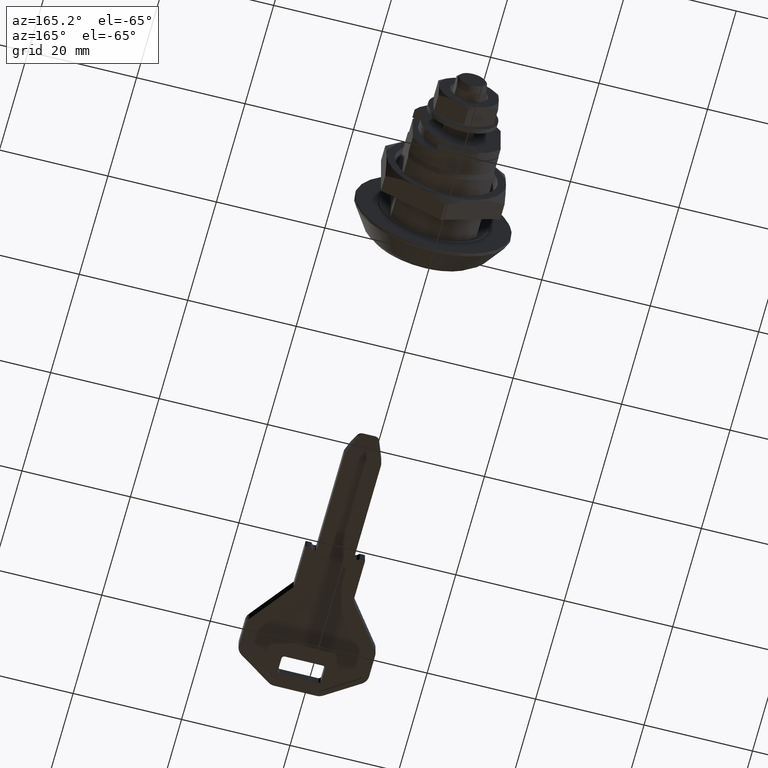
[diagram: clean part render]
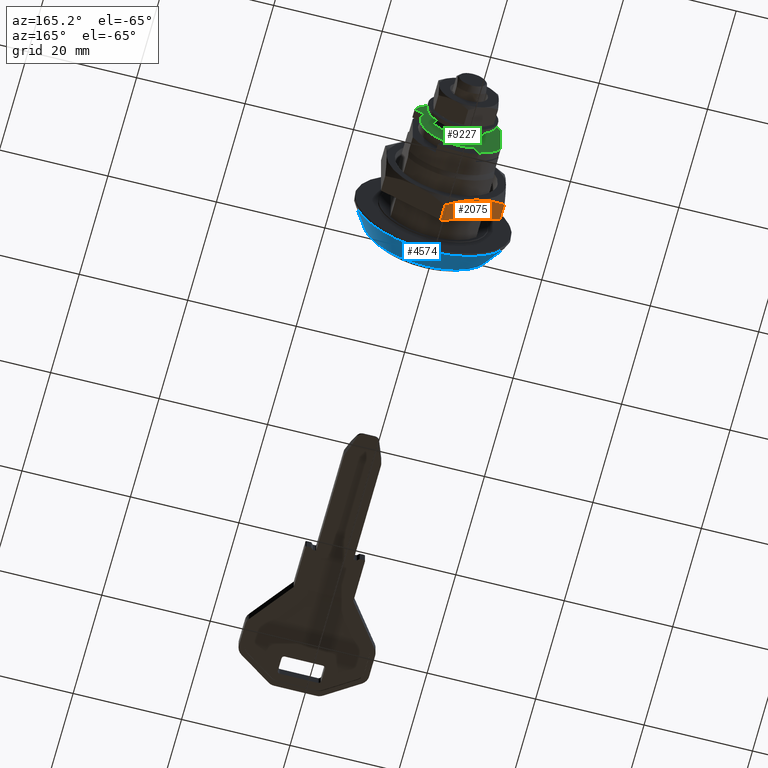
[diagram: same view with three faces highlighted in distinct colors, each labeled with its STEP entity id]
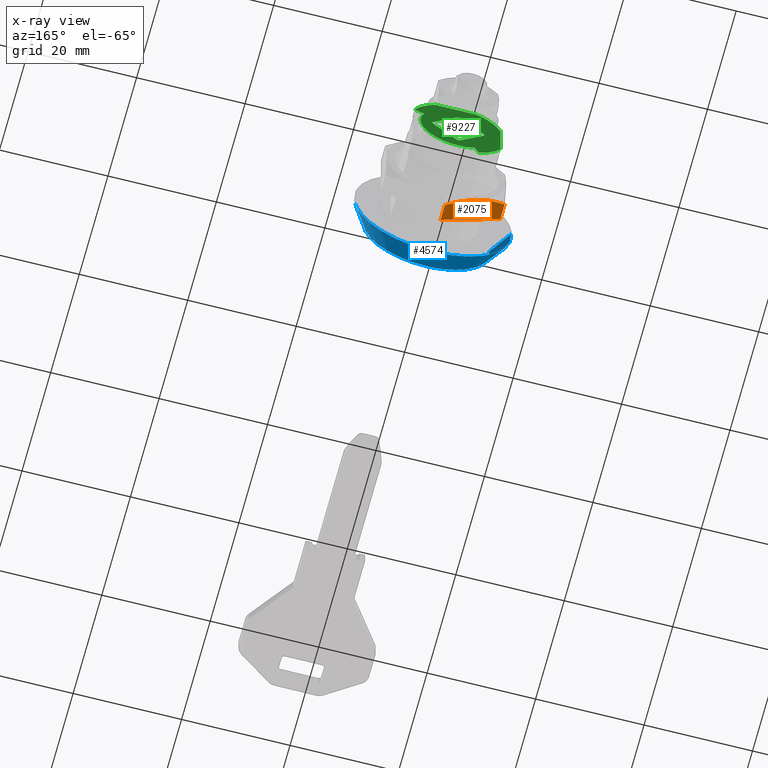
[diagram: x-ray of the same camera — body ghosted, the three highlighted faces saturated]
A machine part, auxiliary view with three faces highlighted in distinct colors.
The next image is the same camera in x-ray (body ghosted, the three faces saturated) — at least one of them is partly hidden behind the body in this view.
Their STEP definitions:

[orange] entity #2075 — the highlighted face is a freeform B-spline surface patch.
#1701=CARTESIAN_POINT('',(-5.500000000023109,9.100000000000001,-9.526279441614451));
#1702=VERTEX_POINT('',#1701);
#1866=CARTESIAN_POINT('',(-3.092218E-010,8.100000000000001,-12.701705921991501));
#1867=VERTEX_POINT('',#1866);
#1883=CARTESIAN_POINT('',(-3.092218E-010,8.100000000000001,-12.701705921991501));
#1884=CARTESIAN_POINT('',(-0.897390671168601,8.404464325251702,-12.183597176602710));
#1885=CARTESIAN_POINT('',(-1.801527311639420,8.655519008509408,-11.661593643842791));
#1886=CARTESIAN_POINT('',(-3.172334283412471,8.916493014328005,-10.870157869682769));
#1887=CARTESIAN_POINT('',(-3.631709724190716,8.984167932261109,-10.604937335290410));
#1888=CARTESIAN_POINT('',(-4.555988596678225,9.075751188439313,-10.071304679453570));
#1889=CARTESIAN_POINT('',(-5.020896850939170,9.099621345255606,-9.802889773707600));
#1890=CARTESIAN_POINT('',(-5.492515007584484,9.099998503333353,-9.530600904013776));
#1891=CARTESIAN_POINT('',(-5.496257409305401,9.099999999408880,-9.528440227372791));
#1892=CARTESIAN_POINT('',(-5.500000000103746,9.099999998507940,-9.526279441567901));
#1893=B_SPLINE_CURVE_WITH_KNOTS('',3,(#1883,#1884,#1885,#1886,#1887,#1888,#1889,#1890,#1891,#1892),.UNSPECIFIED.,.F.,.U.,(4,2,2,2,4),(0.0,0.250000000000000,0.375000000000000,0.500000000000000,0.500999787640793),.UNSPECIFIED.);
#1894=EDGE_CURVE('',#1867,#1702,#1893,.T.);
#1914=CARTESIAN_POINT('',(-10.999999999737000,8.100000000000001,-6.350852961237401));
#1915=VERTEX_POINT('',#1914);
#1932=CARTESIAN_POINT('',(-5.500000000023109,9.100000000000001,-9.526279441614451));
#1933=CARTESIAN_POINT('',(-5.613238213916751,9.099999971245993,-9.460901328340423));
#1934=CARTESIAN_POINT('',(-5.726649521012775,9.098629515745216,-9.395423279659402));
#1935=CARTESIAN_POINT('',(-5.957574947754808,9.093036632926328,-9.262098422367185));
#1936=CARTESIAN_POINT('',(-6.074949705678828,9.088722183420927,-9.194332074283702));
#1937=CARTESIAN_POINT('',(-6.426124768589829,9.071457702720835,-8.991581057179397));
#1938=CARTESIAN_POINT('',(-6.659396536653518,9.054173287237553,-8.856901539093515));
#1939=CARTESIAN_POINT('',(-7.356788676236405,8.985758877713401,-8.454261999574698));
#1940=CARTESIAN_POINT('',(-7.818480344938637,8.918029869608390,-8.187704190366913));
#1941=CARTESIAN_POINT('',(-9.195032414789202,8.656592680722049,-7.392951482285330));
#1942=CARTESIAN_POINT('',(-10.101404799398299,8.404872994816586,-6.869657142045340));
#1943=CARTESIAN_POINT('',(-10.999999999737019,8.100000000000165,-6.350852961237386));
#1944=B_SPLINE_CURVE_WITH_KNOTS('',3,(#1932,#1933,#1934,#1935,#1936,#1937,#1938,#1939,#1940,#1941,#1942,#1943),.UNSPECIFIED.,.F.,.U.,(4,2,2,2,2,4),(0.500999787669096,0.531250000000000,0.562500000000000,0.625000000000000,0.750000000000000,1.0),.UNSPECIFIED.);
#1945=EDGE_CURVE('',#1702,#1915,#1944,.T.);
#2047=CARTESIAN_POINT('',(-11.549449978669591,4.900200007752773,-6.033627867994502));
#2048=CARTESIAN_POINT('',(0.549450273728325,4.900200007752773,-13.018931185613329));
#2049=CARTESIAN_POINT('',(-11.549449978669591,9.299800099535581,-6.033627867994502));
#2050=CARTESIAN_POINT('',(0.549450273728326,9.299800099535581,-13.018931185613329));
#2051=B_SPLINE_SURFACE_WITH_KNOTS('',1,1,((#2047,#2049),(#2048,#2050)),.UNSPECIFIED.,.F.,.F.,.U.,(2,2),(2,2),(0.0,13.970606635239960),(0.0,4.399600091782808),.UNSPECIFIED.);
#2052=ORIENTED_EDGE('',*,*,#1894,.F.);
#2053=CARTESIAN_POINT('',(1.000475E-011,5.099999999999994,-12.701705922165839));
#2054=VERTEX_POINT('',#2053);
#2055=CARTESIAN_POINT('',(-3.092218E-010,8.100000000000001,-12.701705921991501));
#2056=CARTESIAN_POINT('',(1.000475E-011,5.099999999999994,-12.701705922165839));
#2057=QUASI_UNIFORM_CURVE('',1,(#2055,#2056),.UNSPECIFIED.,.F.,.U.);
#2058=EDGE_CURVE('',#1867,#2054,#2057,.T.);
#2059=ORIENTED_EDGE('',*,*,#2058,.T.);
#2060=CARTESIAN_POINT('',(-10.999999999989940,5.099999999999994,-6.350852961091360));
#2061=VERTEX_POINT('',#2060);
#2062=CARTESIAN_POINT('',(1.000475E-011,5.099999999999994,-12.701705922165839));
#2063=CARTESIAN_POINT('',(-10.999999999989940,5.099999999999994,-6.350852961091360));
#2064=QUASI_UNIFORM_CURVE('',1,(#2062,#2063),.UNSPECIFIED.,.F.,.U.);
#2065=EDGE_CURVE('',#2054,#2061,#2064,.T.);
#2066=ORIENTED_EDGE('',*,*,#2065,.T.);
#2067=CARTESIAN_POINT('',(-10.999999999737000,8.100000000000001,-6.350852961237401));
#2068=CARTESIAN_POINT('',(-10.999999999989940,5.099999999999994,-6.350852961091360));
#2069=QUASI_UNIFORM_CURVE('',1,(#2067,#2068),.UNSPECIFIED.,.F.,.U.);
#2070=EDGE_CURVE('',#1915,#2061,#2069,.T.);
#2071=ORIENTED_EDGE('',*,*,#2070,.F.);
#2072=ORIENTED_EDGE('',*,*,#1945,.F.);
#2073=EDGE_LOOP('',(#2052,#2059,#2066,#2071,#2072));
#2074=FACE_OUTER_BOUND('',#2073,.T.);
#2075=ADVANCED_FACE('',(#2074),#2051,.F.);

[blue] entity #4574 — the highlighted face is a freeform B-spline surface patch.
#4343=CARTESIAN_POINT('',(14.472954574721900,-0.499999999865429,-0.885203863069927));
#4344=VERTEX_POINT('',#4343);
#4350=CARTESIAN_POINT('',(-3.061516E-017,-0.499999999984780,-14.500000000000140));
#4351=VERTEX_POINT('',#4350);
#4352=CARTESIAN_POINT('',(-3.061516E-017,-0.499999999984780,-14.500000000000140));
#4353=CARTESIAN_POINT('',(13.412488746198358,-0.499999999925105,-14.373773487147799));
#4354=CARTESIAN_POINT('',(14.472954574721902,-0.499999999865429,-0.885203863069927));
#4362=(BOUNDED_CURVE()B_SPLINE_CURVE(2,(#4352,#4353,#4354),.UNSPECIFIED.,.F.,.U.)B_SPLINE_CURVE_WITH_KNOTS((3,3),(0.500000000000000,0.736331300624226),.UNSPECIFIED.)CURVE()GEOMETRIC_REPRESENTATION_ITEM()RATIONAL_B_SPLINE_CURVE((1.0,0.723120658615202,0.969723356153992))REPRESENTATION_ITEM(''));
#4363=EDGE_CURVE('',#4351,#4344,#4362,.T.);
#4365=CARTESIAN_POINT('',(-14.472954574721900,-0.499999999865427,0.885203863069926));
#4366=VERTEX_POINT('',#4365);
#4367=CARTESIAN_POINT('',(-14.472954574721902,-0.499999999865427,0.885203863069926));
#4368=CARTESIAN_POINT('',(-14.500000000039186,-0.499999999867158,0.443015087794452));
#4369=CARTESIAN_POINT('',(-14.500000000038570,-0.499999999868997,3.697375E-012));
#4370=CARTESIAN_POINT('',(-14.500000000018430,-0.499999999929162,-14.499999999998375));
#4371=CARTESIAN_POINT('',(-3.061516E-017,-0.499999999984780,-14.500000000000140));
#4379=(BOUNDED_CURVE()B_SPLINE_CURVE(2,(#4367,#4368,#4369,#4370,#4371),.UNSPECIFIED.,.F.,.U.)B_SPLINE_CURVE_WITH_KNOTS((3,2,3),(0.239332961767345,0.250000000000000,0.500000000000000),.UNSPECIFIED.)CURVE()GEOMETRIC_REPRESENTATION_ITEM()RATIONAL_B_SPLINE_CURVE((0.976072040655993,0.987502787347326,1.0,0.707106781186547,1.0))REPRESENTATION_ITEM(''));
#4380=EDGE_CURVE('',#4366,#4351,#4379,.T.);
#4467=CARTESIAN_POINT('',(-11.575147386054629,-4.833589941129781,0.910983856030640));
#4468=VERTEX_POINT('',#4467);
#4469=CARTESIAN_POINT('',(-11.575147386054629,-4.833589941129781,0.910983856030640));
#4470=CARTESIAN_POINT('',(-14.472954574721900,-0.499999999865427,0.885203863069926));
#4471=QUASI_UNIFORM_CURVE('',1,(#4469,#4470),.UNSPECIFIED.,.F.,.U.);
#4472=EDGE_CURVE('',#4468,#4366,#4471,.T.);
#4489=CARTESIAN_POINT('',(11.575147386054629,-4.833589941129783,-0.910983856030640));
#4490=VERTEX_POINT('',#4489);
#4506=CARTESIAN_POINT('',(11.575147386054629,-4.833589941129783,-0.910983856030640));
#4507=CARTESIAN_POINT('',(14.472954574721900,-0.499999999865429,-0.885203863069927));
#4508=QUASI_UNIFORM_CURVE('',1,(#4506,#4507),.UNSPECIFIED.,.F.,.U.);
#4509=EDGE_CURVE('',#4490,#4344,#4508,.T.);
#4516=CARTESIAN_POINT('',(11.531454816235735,-4.941929689658704,-0.545588122807060));
#4517=CARTESIAN_POINT('',(11.517391456086944,-4.941929689658702,-0.724280056135963));
#4518=CARTESIAN_POINT('',(10.597826506999123,-4.941929689658704,-12.408460567455906));
#4519=CARTESIAN_POINT('',(-0.905317030228392,-4.941929689658703,-11.503143537227510));
#4520=CARTESIAN_POINT('',(-12.408460567455906,-4.941929689658703,-10.597826506999123));
#4521=CARTESIAN_POINT('',(-11.496721403432813,-4.941929689658704,0.986917977067050));
#4522=CARTESIAN_POINT('',(-11.490336899972885,-4.941929689658704,1.068040785167665));
#4523=CARTESIAN_POINT('',(14.564863992404982,-0.388951757742933,-0.689107916667046));
#4524=CARTESIAN_POINT('',(14.547101192211306,-0.388951757742933,-0.914805692615576));
#4525=CARTESIAN_POINT('',(13.385639899678662,-0.388951757742933,-15.672570668677480));
#4526=CARTESIAN_POINT('',(-1.143465384499406,-0.388951757742932,-14.529105284178071));
#4527=CARTESIAN_POINT('',(-15.672570668677480,-0.388951757742931,-13.385639899678662));
#4528=CARTESIAN_POINT('',(-14.520993774680656,-0.388951757742931,1.246531884893023));
#4529=CARTESIAN_POINT('',(-14.512929794373340,-0.388951757742931,1.348994469666270));
#4537=(BOUNDED_SURFACE()B_SPLINE_SURFACE(2,1,((#4516,#4523),(#4517,#4524),(#4518,#4525),(#4519,#4526),(#4520,#4527),(#4521,#4528),(#4522,#4529)),.UNSPECIFIED.,.F.,.F.,.U.)B_SPLINE_SURFACE_WITH_KNOTS((3,1,2,1,3),(2,2),(0.0,0.540966243527962,24.688013362538939,48.835060481549910,49.078020981460490),(0.0,5.472821686279342),.UNSPECIFIED.)GEOMETRIC_REPRESENTATION_ITEM()RATIONAL_B_SPLINE_SURFACE(((1.013123372274499,1.013123372274499),(1.006561686137250,1.006561686137250),(0.707106781186548,0.707106781186548),(1.0,1.0),(0.707106781186548,0.707106781186548),(1.002947005590895,1.002947005590895),(1.005894011181790,1.005894011181790)))REPRESENTATION_ITEM('')SURFACE());
#4538=ORIENTED_EDGE('',*,*,#4472,.T.);
#4539=ORIENTED_EDGE('',*,*,#4380,.T.);
#4540=ORIENTED_EDGE('',*,*,#4363,.T.);
#4541=ORIENTED_EDGE('',*,*,#4509,.F.);
#4542=CARTESIAN_POINT('',(-2.959622E-016,-4.833589941130070,-11.610940039240059));
#4543=VERTEX_POINT('',#4542);
#4544=CARTESIAN_POINT('',(-2.959622E-016,-4.833589941130070,-11.610940039240059));
#4545=CARTESIAN_POINT('',(10.733042571484326,-4.833589941129928,-11.610940039239273));
#4546=CARTESIAN_POINT('',(11.575147386054637,-4.833589941129783,-0.910983856030640));
#4554=(BOUNDED_CURVE()B_SPLINE_CURVE(2,(#4544,#4545,#4546),.UNSPECIFIED.,.F.,.U.)B_SPLINE_CURVE_WITH_KNOTS((3,3),(0.500000000000000,0.736331300632719),.UNSPECIFIED.)CURVE()GEOMETRIC_REPRESENTATION_ITEM()RATIONAL_B_SPLINE_CURVE((1.0,0.723120658605253,0.969723356171716))REPRESENTATION_ITEM(''));
#4555=EDGE_CURVE('',#4543,#4490,#4554,.T.);
#4556=ORIENTED_EDGE('',*,*,#4555,.F.);
#4557=CARTESIAN_POINT('',(-11.575147386054637,-4.833589941129781,0.910983856030640));
#4558=CARTESIAN_POINT('',(-11.610940039240063,-4.833589941130027,0.456195076601409));
#4559=CARTESIAN_POINT('',(-11.610940039240059,-4.833589941130028,-1.551421E-012));
#4560=CARTESIAN_POINT('',(-11.610940039240063,-4.833589941130049,-11.610940039240806));
#4561=CARTESIAN_POINT('',(-2.959622E-016,-4.833589941130070,-11.610940039240059));
#4569=(BOUNDED_CURVE()B_SPLINE_CURVE(2,(#4557,#4558,#4559,#4560,#4561),.UNSPECIFIED.,.F.,.U.)B_SPLINE_CURVE_WITH_KNOTS((3,2,3),(0.236331300632719,0.250000000000000,0.500000000000000),.UNSPECIFIED.)CURVE()GEOMETRIC_REPRESENTATION_ITEM()RATIONAL_B_SPLINE_CURVE((0.969723356171716,0.983986122581295,1.0,0.707106781186548,1.0))REPRESENTATION_ITEM(''));
#4570=EDGE_CURVE('',#4468,#4543,#4569,.T.);
#4571=ORIENTED_EDGE('',*,*,#4570,.F.);
#4572=EDGE_LOOP('',(#4538,#4539,#4540,#4541,#4556,#4571));
#4573=FACE_OUTER_BOUND('',#4572,.T.);
#4574=ADVANCED_FACE('',(#4573),#4537,.T.);

[green] entity #9227 — the highlighted face is a freeform B-spline surface patch.
#8727=CARTESIAN_POINT('',(8.066139304627553,17.500000000000000,3.761302529489555));
#8728=VERTEX_POINT('',#8727);
#8734=CARTESIAN_POINT('',(4.286023798300111,17.500000000000000,7.800000000000000));
#8735=VERTEX_POINT('',#8734);
#8736=CARTESIAN_POINT('',(4.286023798300111,17.500000000000000,7.800000000000000));
#8737=CARTESIAN_POINT('',(6.836333408676012,17.499999999999996,6.398629784243493));
#8738=CARTESIAN_POINT('',(8.066139304627555,17.500000000000000,3.761302529489556));
#8746=(BOUNDED_CURVE()B_SPLINE_CURVE(2,(#8736,#8737,#8738),.UNSPECIFIED.,.F.,.U.)CURVE()GEOMETRIC_REPRESENTATION_ITEM()QUASI_UNIFORM_CURVE()RATIONAL_B_SPLINE_CURVE((1.0,0.950484181328682,1.0))REPRESENTATION_ITEM(''));
#8747=EDGE_CURVE('',#8735,#8728,#8746,.T.);
#8770=CARTESIAN_POINT('',(-3.377869150819929,17.500000000000000,7.799999999996209));
#8771=VERTEX_POINT('',#8770);
#8772=CARTESIAN_POINT('',(-3.377869150819929,17.500000000000000,7.799999999996209));
#8773=CARTESIAN_POINT('',(4.286023798300111,17.500000000000000,7.800000000000000));
#8774=QUASI_UNIFORM_CURVE('',1,(#8772,#8773),.UNSPECIFIED.,.F.,.U.);
#8775=EDGE_CURVE('',#8771,#8735,#8774,.T.);
#8815=CARTESIAN_POINT('',(-7.799999999999999,17.500000000000000,3.377869150810140));
#8816=VERTEX_POINT('',#8815);
#8817=CARTESIAN_POINT('',(-7.799999999999999,17.500000000000000,3.377869150810140));
#8818=CARTESIAN_POINT('',(-6.463664856444348,17.500000000000004,6.463664856436366));
#8819=CARTESIAN_POINT('',(-3.377869150819934,17.500000000000000,7.799999999996209));
#8827=(BOUNDED_CURVE()B_SPLINE_CURVE(2,(#8817,#8818,#8819),.UNSPECIFIED.,.F.,.U.)CURVE()GEOMETRIC_REPRESENTATION_ITEM()QUASI_UNIFORM_CURVE()RATIONAL_B_SPLINE_CURVE((1.0,0.929876126559526,1.0))REPRESENTATION_ITEM(''));
#8828=EDGE_CURVE('',#8816,#8771,#8827,.T.);
#8851=CARTESIAN_POINT('',(-7.799999999999439,17.500000000000000,-4.286023798348255));
#8852=VERTEX_POINT('',#8851);
#8853=CARTESIAN_POINT('',(-7.799999999999439,17.500000000000000,-4.286023798348255));
#8854=CARTESIAN_POINT('',(-7.799999999999999,17.500000000000000,3.377869150810140));
#8855=QUASI_UNIFORM_CURVE('',1,(#8853,#8854),.UNSPECIFIED.,.F.,.U.);
#8856=EDGE_CURVE('',#8852,#8816,#8855,.T.);
#8896=CARTESIAN_POINT('',(-3.761302529499969,17.500000000000000,-8.066139304629731));
#8897=VERTEX_POINT('',#8896);
#8898=CARTESIAN_POINT('',(-3.761302529499969,17.500000000000000,-8.066139304629731));
#8899=CARTESIAN_POINT('',(-6.398629784224278,17.500000000000004,-6.836333408681617));
#8900=CARTESIAN_POINT('',(-7.799999999999434,17.500000000000000,-4.286023798348253));
#8908=(BOUNDED_CURVE()B_SPLINE_CURVE(2,(#8898,#8899,#8900),.UNSPECIFIED.,.F.,.U.)CURVE()GEOMETRIC_REPRESENTATION_ITEM()QUASI_UNIFORM_CURVE()RATIONAL_B_SPLINE_CURVE((1.0,0.950484181329575,1.0))REPRESENTATION_ITEM(''));
#8909=EDGE_CURVE('',#8897,#8852,#8908,.T.);
#8932=CARTESIAN_POINT('',(-2.958327832188149,17.500000000000000,-6.344154509254860));
#8933=VERTEX_POINT('',#8932);
#8934=CARTESIAN_POINT('',(-2.958327832188149,17.500000000000000,-6.344154509254860));
#8935=CARTESIAN_POINT('',(-3.761302529499969,17.500000000000000,-8.066139304629731));
#8936=QUASI_UNIFORM_CURVE('',1,(#8934,#8935),.UNSPECIFIED.,.F.,.U.);
#8937=EDGE_CURVE('',#8933,#8897,#8936,.T.);
#8985=CARTESIAN_POINT('',(6.344154509255561,17.500000000000000,2.958327832187285));
#8986=VERTEX_POINT('',#8985);
#8987=CARTESIAN_POINT('',(6.344154509255561,17.500000000000000,2.958327832187285));
#8988=CARTESIAN_POINT('',(6.589009069306495,17.499999999999989,2.433588931308323));
#8989=CARTESIAN_POINT('',(6.905882742427118,17.500000000000021,1.451075906461854));
#8990=CARTESIAN_POINT('',(7.063549101140965,17.499999999999989,-0.241991509177428));
#8991=CARTESIAN_POINT('',(6.821480348437667,17.500000000000011,-1.889291703654381));
#8992=CARTESIAN_POINT('',(6.152176463100130,17.499999999999989,-3.456176799989196));
#8993=CARTESIAN_POINT('',(5.341858441237930,17.500000000000011,-4.583557962989720));
#8994=CARTESIAN_POINT('',(4.440656223657611,17.499999999999929,-5.450905788930330));
#8995=CARTESIAN_POINT('',(3.263352726607400,17.500000000000060,-6.263739424742753));
#8996=CARTESIAN_POINT('',(1.797774132293181,17.499999999999989,-6.840528948819826));
#8997=CARTESIAN_POINT('',(0.198223581413840,17.500000000000000,-7.044277842365331));
#8998=CARTESIAN_POINT('',(-1.363628491750430,17.499999999999940,-6.929053769325312));
#8999=CARTESIAN_POINT('',(-2.393253526205955,17.500000000000171,-6.607884486907417));
#9000=CARTESIAN_POINT('',(-2.958327832188149,17.500000000000000,-6.344154509254860));
#9001=B_SPLINE_CURVE_WITH_KNOTS('',3,(#8987,#8988,#8989,#8990,#8991,#8992,#8993,#8994,#8995,#8996,#8997,#8998,#8999,#9000),.UNSPECIFIED.,.F.,.U.,(4,1,1,1,1,1,1,1,1,1,1,4),(0.000000311078601,1.737159822209234,3.073429747377331,5.077919781774943,6.681501885179900,8.151458155121956,9.220281856788301,10.423010998970620,12.427470264448839,13.897403088351290,15.233760385733779,17.104486341175878),.UNSPECIFIED.);
#9002=EDGE_CURVE('',#8986,#8933,#9001,.T.);
#9023=CARTESIAN_POINT('',(8.066139304627553,17.500000000000000,3.761302529489555));
#9024=CARTESIAN_POINT('',(6.344154509255561,17.500000000000000,2.958327832187285));
#9025=QUASI_UNIFORM_CURVE('',1,(#9023,#9024),.UNSPECIFIED.,.F.,.U.);
#9026=EDGE_CURVE('',#8728,#8986,#9025,.T.);
#9130=CARTESIAN_POINT('',(8.858652932142043,17.500000000000000,8.592513627514599));
#9131=CARTESIAN_POINT('',(-8.592514053077506,17.500000000000000,8.592513627514599));
#9132=CARTESIAN_POINT('',(8.858652932142043,17.500000000000000,-8.858653357707347));
#9133=CARTESIAN_POINT('',(-8.592514053077506,17.500000000000000,-8.858653357707347));
#9134=B_SPLINE_SURFACE_WITH_KNOTS('',1,1,((#9130,#9132),(#9131,#9133)),.UNSPECIFIED.,.F.,.F.,.U.,(2,2),(2,2),(0.0,17.451166985219551),(0.0,17.451166985221949),.UNSPECIFIED.);
#9135=ORIENTED_EDGE('',*,*,#9026,.T.);
#9136=ORIENTED_EDGE('',*,*,#9002,.T.);
#9137=ORIENTED_EDGE('',*,*,#8937,.T.);
#9138=ORIENTED_EDGE('',*,*,#8909,.T.);
#9139=ORIENTED_EDGE('',*,*,#8856,.T.);
#9140=ORIENTED_EDGE('',*,*,#8828,.T.);
#9141=ORIENTED_EDGE('',*,*,#8775,.T.);
#9142=ORIENTED_EDGE('',*,*,#8747,.T.);
#9143=EDGE_LOOP('',(#9135,#9136,#9137,#9138,#9139,#9140,#9141,#9142));
#9144=FACE_OUTER_BOUND('',#9143,.T.);
#9145=CARTESIAN_POINT('',(4.666904755831221,17.500000000000000,0.282842712474762));
#9146=VERTEX_POINT('',#9145);
#9147=CARTESIAN_POINT('',(4.666904755831221,17.500000000000000,-0.282842712474477));
#9148=VERTEX_POINT('',#9147);
#9149=CARTESIAN_POINT('',(4.666904755831219,17.500000000000000,0.282842712474759));
#9150=CARTESIAN_POINT('',(4.949747468305830,17.500000000000000,1.423900E-013));
#9151=CARTESIAN_POINT('',(4.666904755831218,17.500000000000000,-0.282842712474474));
#9159=(BOUNDED_CURVE()B_SPLINE_CURVE(2,(#9149,#9150,#9151),.UNSPECIFIED.,.F.,.U.)CURVE()GEOMETRIC_REPRESENTATION_ITEM()QUASI_UNIFORM_CURVE()RATIONAL_B_SPLINE_CURVE((1.0,0.707106781186554,1.0))REPRESENTATION_ITEM(''));
#9160=EDGE_CURVE('',#9146,#9148,#9159,.T.);
#9161=ORIENTED_EDGE('',*,*,#9160,.F.);
#9162=CARTESIAN_POINT('',(0.282842712474621,17.500000000000000,4.666904755831360));
#9163=VERTEX_POINT('',#9162);
#9164=CARTESIAN_POINT('',(4.666904755831221,17.500000000000000,0.282842712474762));
#9165=CARTESIAN_POINT('',(0.282842712474621,17.500000000000000,4.666904755831360));
#9166=QUASI_UNIFORM_CURVE('',1,(#9164,#9165),.UNSPECIFIED.,.F.,.U.);
#9167=EDGE_CURVE('',#9146,#9163,#9166,.T.);
#9168=ORIENTED_EDGE('',*,*,#9167,.T.);
#9169=CARTESIAN_POINT('',(-0.282842712474617,17.500000000000000,4.666904755831360));
#9170=VERTEX_POINT('',#9169);
#9171=CARTESIAN_POINT('',(-0.282842712474615,17.500000000000000,4.666904755831357));
#9172=CARTESIAN_POINT('',(1.568529E-015,17.500000000000004,4.949747468305968));
#9173=CARTESIAN_POINT('',(0.282842712474618,17.500000000000000,4.666904755831357));
#9181=(BOUNDED_CURVE()B_SPLINE_CURVE(2,(#9171,#9172,#9173),.UNSPECIFIED.,.F.,.U.)CURVE()GEOMETRIC_REPRESENTATION_ITEM()QUASI_UNIFORM_CURVE()RATIONAL_B_SPLINE_CURVE((1.0,0.707106781186555,1.0))REPRESENTATION_ITEM(''));
#9182=EDGE_CURVE('',#9170,#9163,#9181,.T.);
#9183=ORIENTED_EDGE('',*,*,#9182,.F.);
#9184=CARTESIAN_POINT('',(-4.666904755831209,17.500000000000000,0.282842712474763));
#9185=VERTEX_POINT('',#9184);
#9186=CARTESIAN_POINT('',(-0.282842712474617,17.500000000000000,4.666904755831360));
#9187=CARTESIAN_POINT('',(-4.666904755831209,17.500000000000000,0.282842712474763));
#9188=QUASI_UNIFORM_CURVE('',1,(#9186,#9187),.UNSPECIFIED.,.F.,.U.);
#9189=EDGE_CURVE('',#9170,#9185,#9188,.T.);
#9190=ORIENTED_EDGE('',*,*,#9189,.T.);
#9191=CARTESIAN_POINT('',(-4.666904755831209,17.500000000000000,-0.282842712474477));
#9192=VERTEX_POINT('',#9191);
#9193=CARTESIAN_POINT('',(-4.666904755831209,17.500000000000000,-0.282842712474477));
#9194=CARTESIAN_POINT('',(-4.732217391388562,17.499999999999979,-0.218282521079553));
#9195=CARTESIAN_POINT('',(-4.790621064800018,17.500000000000011,-0.092718247319124));
#9196=CARTESIAN_POINT('',(-4.780198225746517,17.500000000000000,0.118872684646496));
#9197=CARTESIAN_POINT('',(-4.722695064649728,17.500000000000021,0.227433584389059));
#9198=CARTESIAN_POINT('',(-4.666904755831209,17.500000000000000,0.282842712474763));
#9199=B_SPLINE_CURVE_WITH_KNOTS('',3,(#9193,#9194,#9195,#9196,#9197,#9198),.UNSPECIFIED.,.F.,.U.,(4,1,1,4),(0.000000884788741,0.274943312710205,0.392710484200598,0.628381553747709),.UNSPECIFIED.);
#9200=EDGE_CURVE('',#9192,#9185,#9199,.T.);
#9201=ORIENTED_EDGE('',*,*,#9200,.F.);
#9202=CARTESIAN_POINT('',(-0.282842712474618,17.500000000000000,-4.666904755831070));
#9203=VERTEX_POINT('',#9202);
#9204=CARTESIAN_POINT('',(-4.666904755831209,17.500000000000000,-0.282842712474477));
#9205=CARTESIAN_POINT('',(-0.282842712474618,17.500000000000000,-4.666904755831070));
#9206=QUASI_UNIFORM_CURVE('',1,(#9204,#9205),.UNSPECIFIED.,.F.,.U.);
#9207=EDGE_CURVE('',#9192,#9203,#9206,.T.);
#9208=ORIENTED_EDGE('',*,*,#9207,.T.);
#9209=CARTESIAN_POINT('',(0.282842712474621,17.500000000000000,-4.666904755831070));
#9210=VERTEX_POINT('',#9209);
#9211=CARTESIAN_POINT('',(0.282842712474621,17.500000000000000,-4.666904755831070));
#9212=CARTESIAN_POINT('',(0.241226384501358,17.500000000000021,-4.708579895573671));
#9213=CARTESIAN_POINT('',(0.127904302564461,17.499999999999979,-4.780423640014598));
#9214=CARTESIAN_POINT('',(-0.088675150139860,17.500000000000050,-4.796361800941132));
#9215=CARTESIAN_POINT('',(-0.227437238215049,17.499999999999940,-4.722667232903745));
#9216=CARTESIAN_POINT('',(-0.282842712474618,17.500000000000000,-4.666904755831070));
#9217=B_SPLINE_CURVE_WITH_KNOTS('',3,(#9211,#9212,#9213,#9214,#9215,#9216),.UNSPECIFIED.,.F.,.U.,(4,1,1,4),(0.000000884788746,0.176736176578781,0.392710484200599,0.628381553747708),.UNSPECIFIED.);
#9218=EDGE_CURVE('',#9210,#9203,#9217,.T.);
#9219=ORIENTED_EDGE('',*,*,#9218,.F.);
#9220=CARTESIAN_POINT('',(0.282842712474621,17.500000000000000,-4.666904755831070));
#9221=CARTESIAN_POINT('',(4.666904755831221,17.500000000000000,-0.282842712474477));
#9222=QUASI_UNIFORM_CURVE('',1,(#9220,#9221),.UNSPECIFIED.,.F.,.U.);
#9223=EDGE_CURVE('',#9210,#9148,#9222,.T.);
#9224=ORIENTED_EDGE('',*,*,#9223,.T.);
#9225=EDGE_LOOP('',(#9161,#9168,#9183,#9190,#9201,#9208,#9219,#9224));
#9226=FACE_BOUND('',#9225,.T.);
#9227=ADVANCED_FACE('',(#9144,#9226),#9134,.F.);